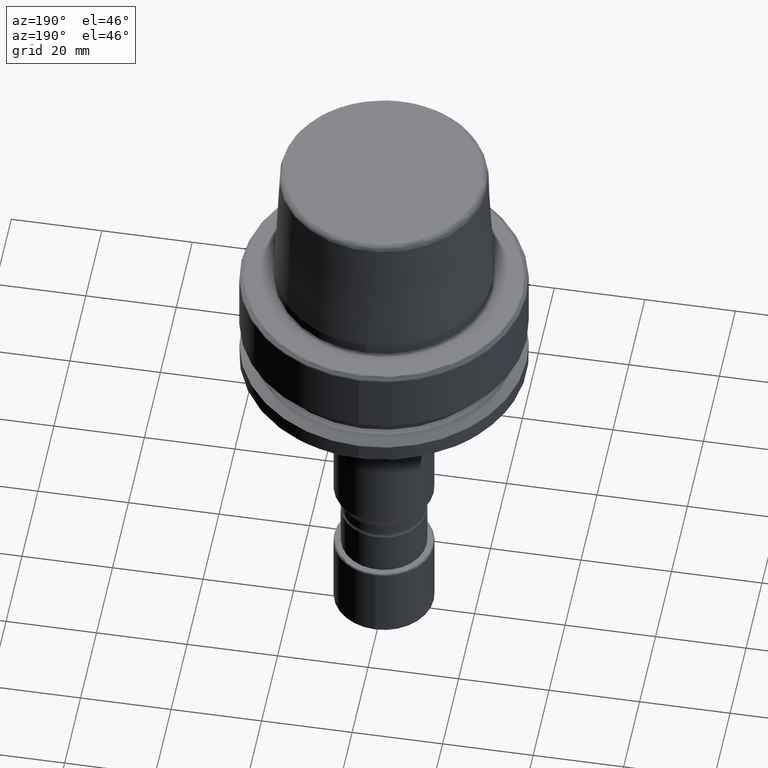
[diagram: clean part render]
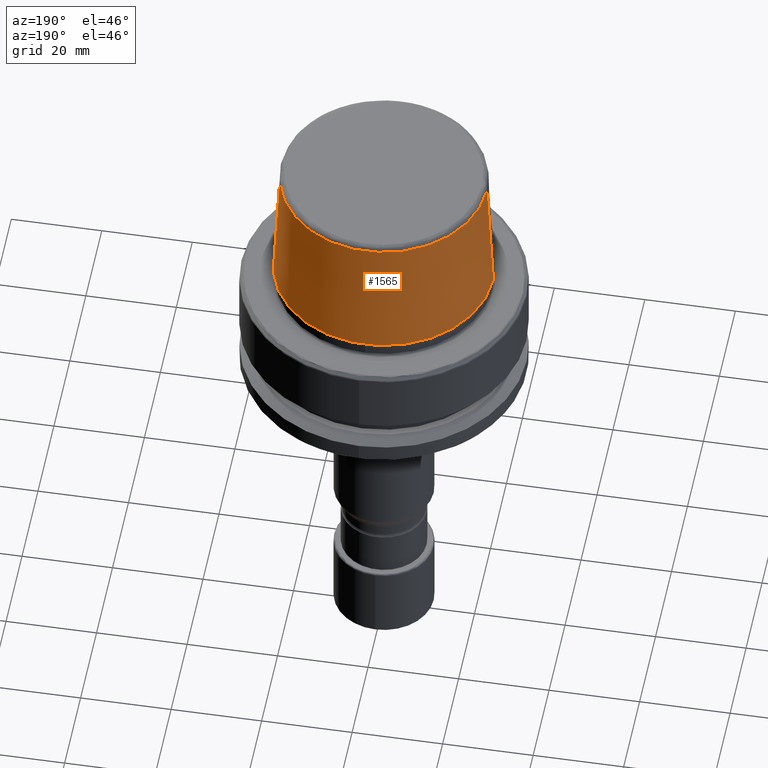
[diagram: same view with one face highlighted and labeled with its STEP entity id]
A machine part, auxiliary view. The second image highlights one B-rep face of the part: STEP entity #1565.
In plain terms, the highlighted conical surface has half-angle 2.868 deg.
Its self-contained STEP definition (entity closure, byte-faithful):
#5 = CARTESIAN_POINT ( 'NONE',  ( 24.17032625100000200, 2.960011267763439600E-015, 3.000000000000002700 ) ) ;
#7 = CARTESIAN_POINT ( 'NONE',  ( 0.0000000000000000000, 0.0000000000000000000, 3.000000000000002700 ) ) ;
#12 = ORIENTED_EDGE ( 'NONE', *, *, #2275, .F. ) ;
#183 = VERTEX_POINT ( 'NONE', #1191 ) ;
#220 = AXIS2_PLACEMENT_3D ( 'NONE', #1250, #1522, #1796 ) ;
#286 = ORIENTED_EDGE ( 'NONE', *, *, #2531, .F. ) ;
#306 = DIRECTION ( 'NONE',  ( 1.000000000000000000, 0.0000000000000000000, -1.076561891198119100E-016 ) ) ;
#328 = VERTEX_POINT ( 'NONE', #946 ) ;
#414 = DIRECTION ( 'NONE',  ( -0.05003611050185009100, 0.0000000000000000000, -0.9987474093312315200 ) ) ;
#433 = VECTOR ( 'NONE', #3074, 1000.000000000000100 ) ;
#538 = CARTESIAN_POINT ( 'NONE',  ( 22.77957961900000300, 2.789693926633063400E-015, 30.76004333299999500 ) ) ;
#804 = VERTEX_POINT ( 'NONE', #1048 ) ;
#940 = DIRECTION ( 'NONE',  ( -0.0000000000000000000, -0.0000000000000000000, 1.000000000000000000 ) ) ;
#946 = CARTESIAN_POINT ( 'NONE',  ( -22.77957961885135400, -1.022730554035613000E-009, 30.76004333299252700 ) ) ;
#1032 = LINE ( 'NONE', #538, #433 ) ;
#1048 = CARTESIAN_POINT ( 'NONE',  ( 22.77957961885135400, -7.008254819992292000E-009, 30.76004333299252700 ) ) ;
#1186 = EDGE_CURVE ( 'NONE', #3130, #183, #1386, .T. ) ;
#1191 = CARTESIAN_POINT ( 'NONE',  ( -24.17032625100000200, 0.0000000000000000000, 3.000000000000002700 ) ) ;
#1250 = CARTESIAN_POINT ( 'NONE',  ( 0.0000000000000000000, 0.0000000000000000000, 30.76004333299999500 ) ) ;
#1382 = LINE ( 'NONE', #2259, #1479 ) ;
#1386 = CIRCLE ( 'NONE', #1466, 24.17032625100000200 ) ;
#1466 = AXIS2_PLACEMENT_3D ( 'NONE', #7, #1921, #306 ) ;
#1475 = CIRCLE ( 'NONE', #2439, 22.77957961900000300 ) ;
#1479 = VECTOR ( 'NONE', #414, 1000.000000000000100 ) ;
#1522 = DIRECTION ( 'NONE',  ( 0.0000000000000000000, 0.0000000000000000000, -1.000000000000000000 ) ) ;
#1565 = ADVANCED_FACE ( 'NONE', ( #2049 ), #2785, .T. ) ;
#1796 = DIRECTION ( 'NONE',  ( -1.000000000000000000, 0.0000000000000000000, 0.0000000000000000000 ) ) ;
#1798 = ORIENTED_EDGE ( 'NONE', *, *, #1186, .T. ) ;
#1895 = EDGE_CURVE ( 'NONE', #804, #3130, #1032, .T. ) ;
#1921 = DIRECTION ( 'NONE',  ( 0.0000000000000000000, 0.0000000000000000000, 1.000000000000000000 ) ) ;
#2049 = FACE_OUTER_BOUND ( 'NONE', #2319, .T. ) ;
#2259 = CARTESIAN_POINT ( 'NONE',  ( -22.77957961900000300, 0.0000000000000000000, 30.76004333299999500 ) ) ;
#2275 = EDGE_CURVE ( 'NONE', #328, #183, #1382, .T. ) ;
#2319 = EDGE_LOOP ( 'NONE', ( #286, #3019, #1798, #12 ) ) ;
#2439 = AXIS2_PLACEMENT_3D ( 'NONE', #2467, #940, #2705 ) ;
#2467 = CARTESIAN_POINT ( 'NONE',  ( 0.0000000000000000000, 0.0000000000000000000, 30.76004333299997700 ) ) ;
#2531 = EDGE_CURVE ( 'NONE', #804, #328, #1475, .T. ) ;
#2705 = DIRECTION ( 'NONE',  ( -1.000000000000000000, 8.881784197001252300E-016, 9.138308107476618100E-016 ) ) ;
#2785 = CONICAL_SURFACE ( 'NONE', #220, 22.77957961900000300, 0.05005701256328789300 ) ;
#3019 = ORIENTED_EDGE ( 'NONE', *, *, #1895, .T. ) ;
#3074 = DIRECTION ( 'NONE',  ( 0.05003611050185009100, 6.127656256787398800E-018, -0.9987474093312315200 ) ) ;
#3130 = VERTEX_POINT ( 'NONE', #5 ) ;